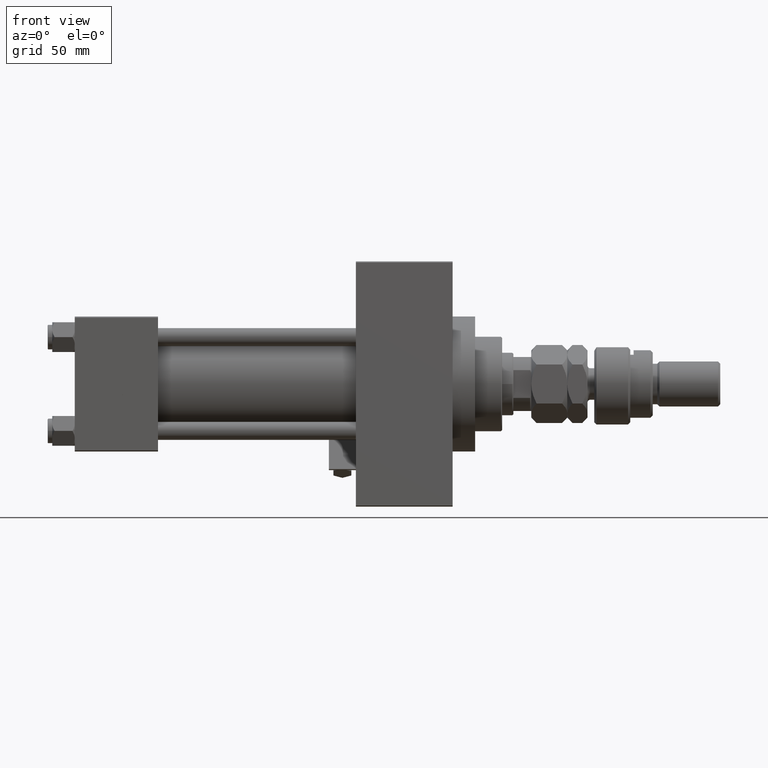
[diagram: clean part render]
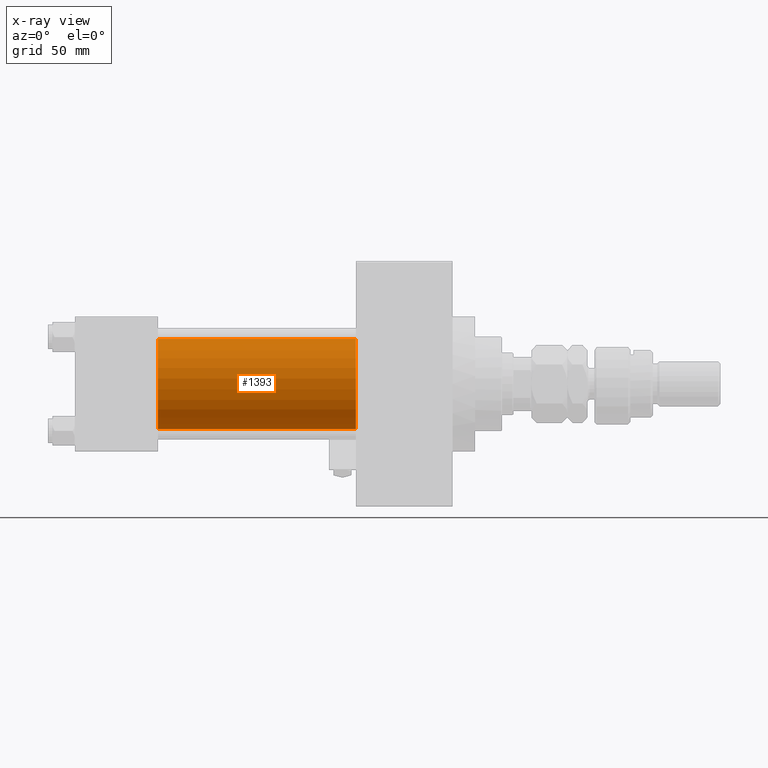
[diagram: x-ray — body ghosted, one internal face saturated and labeled with its STEP entity id]
A machine part, front view, then the same camera in x-ray: the body is ghosted and one INTERNAL B-rep face — a face not visible from any outside direction — is saturated and labeled: STEP entity #1393.
In plain terms, the highlighted cylindrical surface (partial cylindrical patch) has radius 20 mm, axis along (-1, -0, -0).
Its self-contained STEP definition (entity closure, byte-faithful):
#457 = DIRECTION ( 'NONE',  ( 0.000000000000000000, 0.000000000000000000, 1.000000000000000000 ) ) ;
#1393 = ADVANCED_FACE ( 'NONE', ( #16181 ), #21044, .F. ) ;
#1488 = VERTEX_POINT ( 'NONE', #25621 ) ;
#2683 = DIRECTION ( 'NONE',  ( -1.000000000000000000, -0.000000000000000000, -0.000000000000000000 ) ) ;
#5095 = DIRECTION ( 'NONE',  ( 1.000000000000000000, 0.000000000000000000, 0.000000000000000000 ) ) ;
#5276 = AXIS2_PLACEMENT_3D ( 'NONE', #41504, #13143, #13408 ) ;
#5291 = CARTESIAN_POINT ( 'NONE',  ( 125.0000000000000000, -2.602085213965210642E-15, 20.00000000000000000 ) ) ;
#5951 = ORIENTED_EDGE ( 'NONE', *, *, #15513, .F. ) ;
#8065 = DIRECTION ( 'NONE',  ( -1.000000000000000000, -0.000000000000000000, -0.000000000000000000 ) ) ;
#8887 = EDGE_CURVE ( 'NONE', #1488, #47914, #43491, .T. ) ;
#10218 = CARTESIAN_POINT ( 'NONE',  ( 125.0000000000000000, -2.602085213965210642E-15, 0.000000000000000000 ) ) ;
#13143 = DIRECTION ( 'NONE',  ( 1.000000000000000000, 0.000000000000000000, 0.000000000000000000 ) ) ;
#13408 = DIRECTION ( 'NONE',  ( 0.000000000000000000, 0.000000000000000000, -1.000000000000000000 ) ) ;
#15513 = EDGE_CURVE ( 'NONE', #47889, #42280, #17768, .T. ) ;
#16181 = FACE_OUTER_BOUND ( 'NONE', #34422, .T. ) ;
#16264 = ORIENTED_EDGE ( 'NONE', *, *, #8887, .T. ) ;
#17329 = EDGE_CURVE ( 'NONE', #42280, #47914, #28609, .T. ) ;
#17505 = DIRECTION ( 'NONE',  ( -1.000000000000000000, -0.000000000000000000, -0.000000000000000000 ) ) ;
#17768 = LINE ( 'NONE', #34761, #31987 ) ;
#18079 = DIRECTION ( 'NONE',  ( 0.000000000000000000, 0.000000000000000000, -1.000000000000000000 ) ) ;
#18588 = ORIENTED_EDGE ( 'NONE', *, *, #17329, .F. ) ;
#18651 = CARTESIAN_POINT ( 'NONE',  ( 125.0000000000000000, -1.527916156705042519E-16, -20.00000000000000000 ) ) ;
#19050 = CARTESIAN_POINT ( 'NONE',  ( 37.00000000000000000, -2.602085213965210642E-15, 20.00000000000000000 ) ) ;
#19979 = CARTESIAN_POINT ( 'NONE',  ( 125.0000000000000000, -2.602085213965210642E-15, 0.000000000000000000 ) ) ;
#21044 = CYLINDRICAL_SURFACE ( 'NONE', #48037, 20.00000000000000000 ) ;
#25621 = CARTESIAN_POINT ( 'NONE',  ( 125.0000000000000000, -1.527916156705042519E-16, -20.00000000000000000 ) ) ;
#25741 = EDGE_CURVE ( 'NONE', #47889, #1488, #35683, .T. ) ;
#28609 = CIRCLE ( 'NONE', #5276, 20.00000000000000000 ) ;
#30175 = CARTESIAN_POINT ( 'NONE',  ( 37.00000000000000000, -1.527916156705042519E-16, -20.00000000000000000 ) ) ;
#31987 = VECTOR ( 'NONE', #17505, 1000.000000000000000 ) ;
#34422 = EDGE_LOOP ( 'NONE', ( #45892, #16264, #18588, #5951 ) ) ;
#34761 = CARTESIAN_POINT ( 'NONE',  ( 125.0000000000000000, -2.602085213965210642E-15, 20.00000000000000000 ) ) ;
#35683 = CIRCLE ( 'NONE', #50382, 20.00000000000000000 ) ;
#41318 = VECTOR ( 'NONE', #2683, 1000.000000000000000 ) ;
#41504 = CARTESIAN_POINT ( 'NONE',  ( 37.00000000000000000, -2.602085213965210642E-15, 0.000000000000000000 ) ) ;
#42280 = VERTEX_POINT ( 'NONE', #19050 ) ;
#43491 = LINE ( 'NONE', #18651, #41318 ) ;
#45892 = ORIENTED_EDGE ( 'NONE', *, *, #25741, .T. ) ;
#47889 = VERTEX_POINT ( 'NONE', #5291 ) ;
#47914 = VERTEX_POINT ( 'NONE', #30175 ) ;
#48037 = AXIS2_PLACEMENT_3D ( 'NONE', #19979, #8065, #457 ) ;
#50382 = AXIS2_PLACEMENT_3D ( 'NONE', #10218, #5095, #18079 ) ;